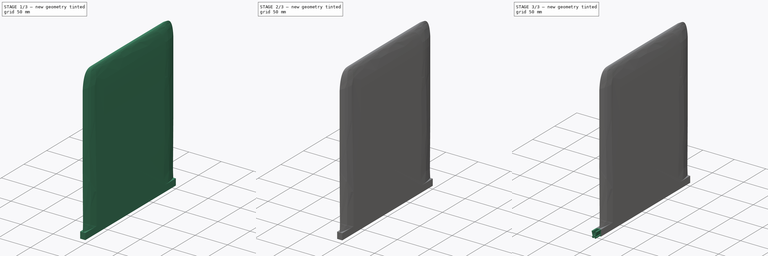
[diagram: build sequence overview — one tinted view per stage of 3, left to right]
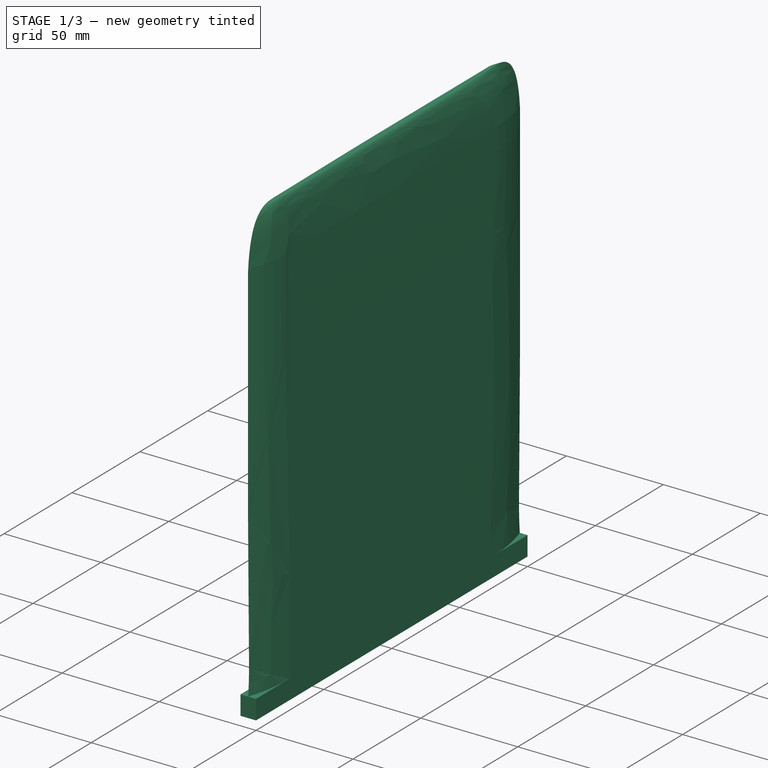
[diagram: stage 1 of 3 — iso view after this stage's code; geometry added in this stage tinted green]
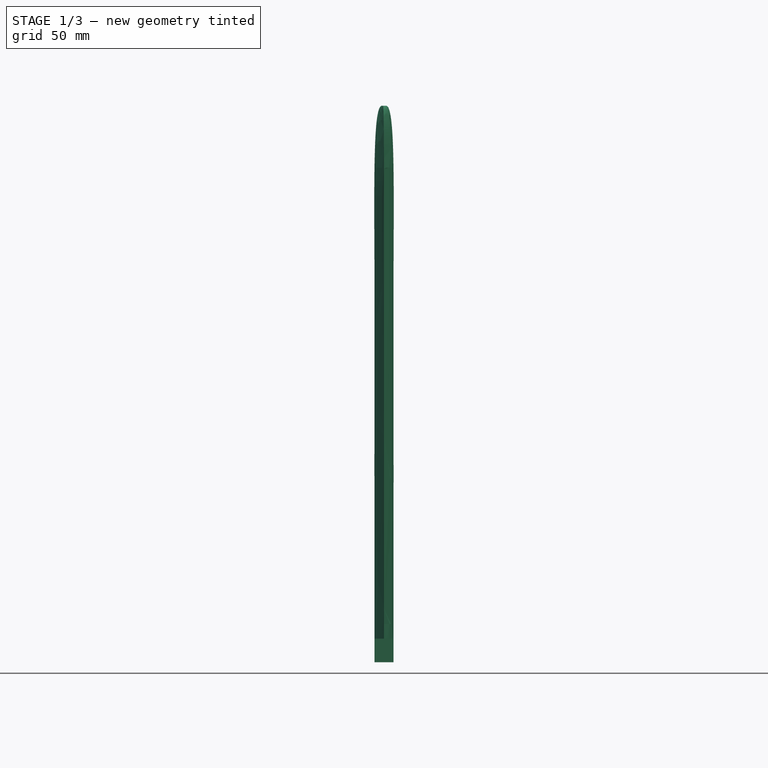
[diagram: stage 1 of 3 — front view after this stage's code; geometry added in this stage tinted green]
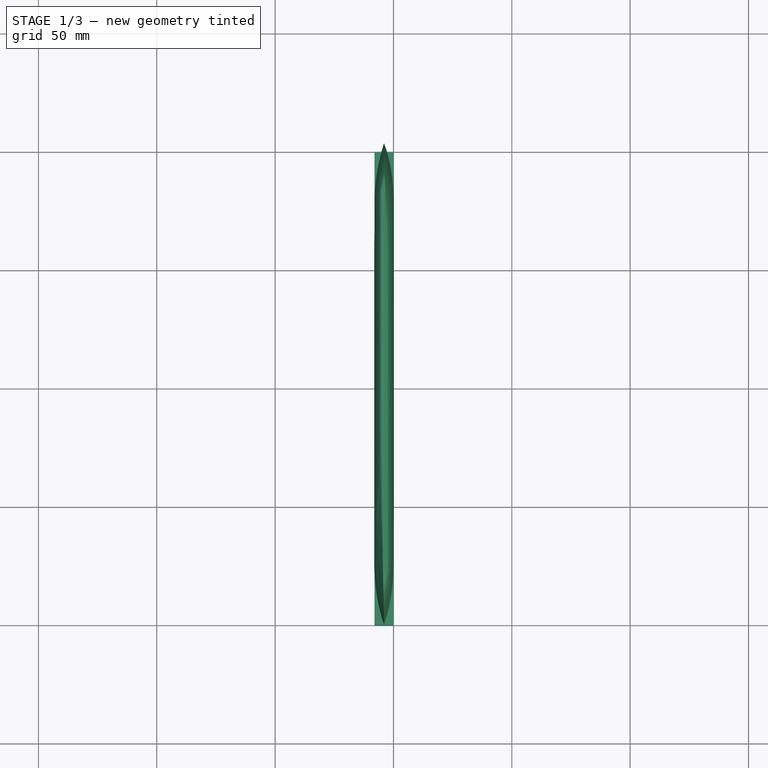
[diagram: stage 1 of 3 — top view after this stage's code; geometry added in this stage tinted green]
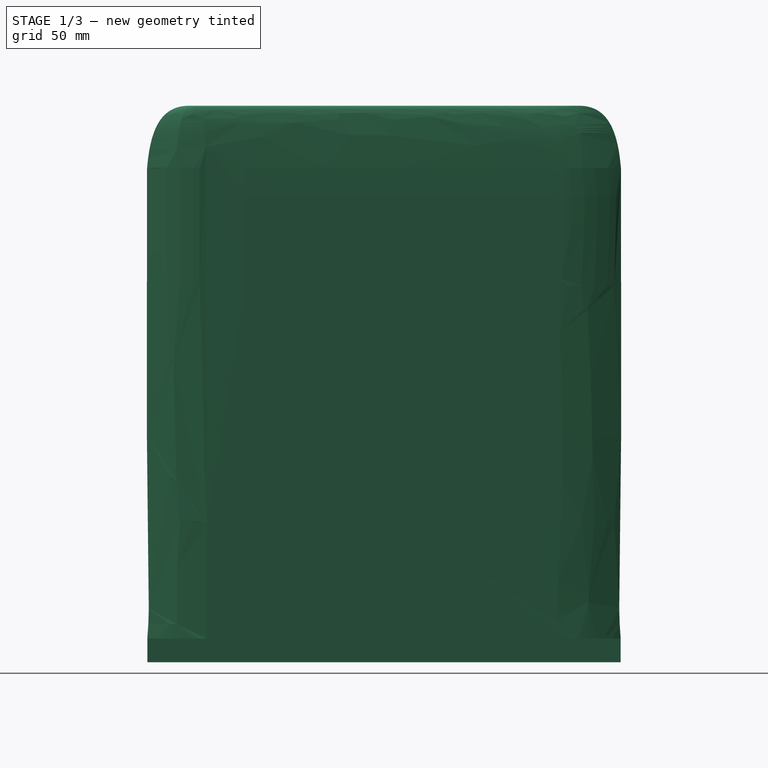
[diagram: stage 1 of 3 — right view after this stage's code; geometry added in this stage tinted green]
FCSTD DOCUMENT  (FreeCAD 1.0R39285 (Git))
Label: Fin
License: All rights reserved
LicenseURL: https://en.wikipedia.org/wiki/All_rights_reserved
objects: Sketcher::SketchObject×9, PartDesign::Pad×3, PartDesign::AdditiveLoft×1, PartDesign::Pocket×1, PartDesign::Body×1
note: 34 computed .brp shape members not serialized (recipe doc carries the construction recipe); baked Part::Feature solids carry a one-line shape summary decoded from their .brp

FEATURE [Sketcher::SketchObject] Sketch
  ArcFitTolerance = 1e-06
  AttachmentSupport = -> [XY_Plane]
  FullyConstrained = true
  MakeInternals = false
  MapMode = 5
  sketch-geometry (4):
    g0: LineSegment StartX=0 StartY=0 StartZ=0 EndX=-8 EndY=0 EndZ=0
    g1: LineSegment StartX=-8 StartY=0 StartZ=0 EndX=-8 EndY=-200 EndZ=0
    g2: LineSegment StartX=-8 StartY=-200 StartZ=0 EndX=0 EndY=-200 EndZ=0
    g3: LineSegment StartX=0 StartY=-200 StartZ=0 EndX=0 EndY=0 EndZ=0
  constraints (11):
    c: Coincident(g0,g1)
    c: Coincident(g1,g2)
    c: Coincident(g2,g3)
    c: Coincident(g3,g0)
    c: Horizontal(g0)
    c: Horizontal(g2)
    c: Vertical(g1)
    c: Vertical(g3)
    c: Distance(g1,g3) = 8
    c: Distance(g0,g2) = 200
    c: Coincident(g0,g-1)
FEATURE [PartDesign::Pad] Pad
  Direction = (0,0,1)
  Length = 10
  Length2 = 10
  Profile = -> Sketch
  ReferenceAxis = -> Sketch [N_Axis]
  Refine = true
  Suppressed = false
  Type = 0
FEATURE [Sketcher::SketchObject] Sketch001
  ArcFitTolerance = 1e-06
  AttachmentSupport = -> [Pad]
  ExternalGeometry = -> [Pad]
  FullyConstrained = true
  MakeInternals = false
  MapMode = 5
  Placement = pos=(0,0,10) rot=(0,0,1;0rad)
  sketch-geometry (11):
    g0: ArcOfCircle CenterX=72.125 CenterY=-25 CenterZ=0 NormalX=0 NormalY=0 NormalZ=1 AngleXU=0 Radius=80.125 StartAngle=2.82428 EndAngle=3.14159
    g1: LineSegment [constr] StartX=-8 StartY=-25 StartZ=0 EndX=72.125 EndY=-25 EndZ=0
    g2: ArcOfCircle CenterX=72.125 CenterY=-175 CenterZ=0 NormalX=0 NormalY=0 NormalZ=1 AngleXU=0 Radius=80.125 StartAngle=3.14159 EndAngle=3.4589
    g3: LineSegment [constr] StartX=72.125 StartY=-175 StartZ=0 EndX=-8 EndY=-175 EndZ=0
    g4: LineSegment [constr] StartX=-4 StartY=0 StartZ=0 EndX=-4 EndY=-200 EndZ=0
    g5: LineSegment StartX=-8 StartY=-25 StartZ=0 EndX=-8 EndY=-175 EndZ=0
    g6: ArcOfCircle CenterX=-80.125 CenterY=-25 CenterZ=0 NormalX=0 NormalY=0 NormalZ=1 AngleXU=0 Radius=80.125 StartAngle=0 EndAngle=0.317311
    g7: ArcOfCircle CenterX=-80.125 CenterY=-175 CenterZ=0 NormalX=0 NormalY=0 NormalZ=1 AngleXU=0 Radius=80.125 StartAngle=5.96587 EndAngle=6.28319
    g8: LineSegment StartX=0 StartY=-25 StartZ=0 EndX=0 EndY=-175 EndZ=0
    g9: LineSegment [constr] StartX=-80.125 StartY=-25 StartZ=0 EndX=-8 EndY=-25 EndZ=0
    g10: LineSegment [constr] StartX=-80.125 StartY=-175 StartZ=0 EndX=-8 EndY=-175 EndZ=0
  constraints (28):
    c: Symmetric(g-4,g-4,g0)
    c: Coincident(g1,g0)
    c: Coincident(g1,g0)
    c: Horizontal(g1)
    c: Vertical(g-4,g0)
    c: Coincident(g3,g2)
    c: Coincident(g3,g2)
    c: Horizontal(g3)
    c: Symmetric(g-3,g-3,g2)
    c: Distance(g3,g-3) = 25
    c: Distance(g-4,g1) = 25
    c: Coincident(g4,g0)
    c: Coincident(g4,g2)
    c: Tangent(g5,g0) = -1.5708
    c: Coincident(g5,g2)
    c: Tangent(g8,g6) = 1.5708
    c: Coincident(g8,g7)
    c: Coincident(g6,g0)
    c: PointOnObject(g6,g1)
    c: PointOnObject(g6,g-2)
    c: Coincident(g9,g6)
    c: Coincident(g9,g0)
    c: Horizontal(g9)
    c: PointOnObject(g7,g3)
    c: Coincident(g7,g2)
    c: Coincident(g10,g7)
    c: Coincident(g10,g2)
    c: Horizontal(g10)
FEATURE [Sketcher::SketchObject] Sketch002
  ArcFitTolerance = 1e-06
  AttachmentOffset = pos=(0,0,50) rot=(0,0,1;0rad)
  AttachmentSupport = -> [Pad]
  ExternalGeometry = -> [Pad]
  FullyConstrained = true
  MakeInternals = false
  MapMode = 5
  Placement = pos=(0,0,60) rot=(0,0,1;0rad)
  sketch-geometry (11):
    g0: ArcOfCircle CenterX=72.125 CenterY=-25 CenterZ=0 NormalX=0 NormalY=0 NormalZ=1 AngleXU=0 Radius=80.125 StartAngle=2.82428 EndAngle=3.14159
    g1: LineSegment [constr] StartX=-8 StartY=-25 StartZ=0 EndX=72.125 EndY=-25 EndZ=0
    g2: ArcOfCircle CenterX=72.125 CenterY=-175 CenterZ=0 NormalX=0 NormalY=0 NormalZ=1 AngleXU=0 Radius=80.125 StartAngle=3.14159 EndAngle=3.4589
    g3: LineSegment [constr] StartX=72.125 StartY=-175 StartZ=0 EndX=-8 EndY=-175 EndZ=0
    g4: LineSegment [constr] StartX=-4 StartY=-3.6e-15 StartZ=0 EndX=-4 EndY=-200 EndZ=0
    g5: LineSegment StartX=-8 StartY=-25 StartZ=0 EndX=-8 EndY=-175 EndZ=0
    g6: ArcOfCircle CenterX=-80.125 CenterY=-25 CenterZ=0 NormalX=0 NormalY=0 NormalZ=1 AngleXU=0 Radius=80.125 StartAngle=0 EndAngle=0.317311
    g7: ArcOfCircle CenterX=-80.125 CenterY=-175 CenterZ=0 NormalX=0 NormalY=0 NormalZ=1 AngleXU=0 Radius=80.125 StartAngle=5.96587 EndAngle=6.28319
    g8: LineSegment StartX=0 StartY=-25 StartZ=0 EndX=0 EndY=-175 EndZ=0
    g9: LineSegment [constr] StartX=-80.125 StartY=-25 StartZ=0 EndX=-8 EndY=-25 EndZ=0
    g10: LineSegment [constr] StartX=-80.125 StartY=-175 StartZ=0 EndX=-8 EndY=-175 EndZ=0
  constraints (28):
    c: Symmetric(g-4,g-4,g0)
    c: Coincident(g1,g0)
    c: Coincident(g1,g0)
    c: Horizontal(g1)
    c: Vertical(g-4,g0)
    c: Coincident(g3,g2)
    c: Coincident(g3,g2)
    c: Horizontal(g3)
    c: Symmetric(g-3,g-3,g2)
    c: Distance(g3,g-3) = 25
    c: Distance(g-4,g1) = 25
    c: Coincident(g4,g0)
    c: Coincident(g4,g2)
    c: Tangent(g5,g0) = -1.5708
    c: Coincident(g5,g2)
    c: Tangent(g8,g6) = 1.5708
    c: Coincident(g8,g7)
    c: Coincident(g6,g0)
    c: PointOnObject(g6,g1)
    c: PointOnObject(g6,g-2)
    c: Coincident(g9,g6)
    c: Coincident(g9,g0)
    c: Horizontal(g9)
    c: PointOnObject(g7,g3)
    c: Coincident(g7,g2)
    c: Coincident(g10,g7)
    c: Coincident(g10,g2)
    c: Horizontal(g10)
FEATURE [Sketcher::SketchObject] Sketch003
  ArcFitTolerance = 1e-06
  AttachmentOffset = pos=(0,0,100) rot=(0,0,1;0rad)
  AttachmentSupport = -> [Pad]
  ExternalGeometry = -> [Pad]
  FullyConstrained = true
  MakeInternals = false
  MapMode = 5
  Placement = pos=(0,0,110) rot=(0,0,1;0rad)
  sketch-geometry (11):
    g0: ArcOfCircle CenterX=72.125 CenterY=-25 CenterZ=0 NormalX=0 NormalY=0 NormalZ=1 AngleXU=0 Radius=80.125 StartAngle=2.82428 EndAngle=3.14159
    g1: LineSegment [constr] StartX=-8 StartY=-25 StartZ=0 EndX=72.125 EndY=-25 EndZ=0
    g2: ArcOfCircle CenterX=72.125 CenterY=-175 CenterZ=0 NormalX=0 NormalY=0 NormalZ=1 AngleXU=0 Radius=80.125 StartAngle=3.14159 EndAngle=3.4589
    g3: LineSegment [constr] StartX=72.125 StartY=-175 StartZ=0 EndX=-8 EndY=-175 EndZ=0
    g4: LineSegment [constr] StartX=-4 StartY=1.78e-14 StartZ=0 EndX=-4 EndY=-200 EndZ=0
    g5: LineSegment StartX=-8 StartY=-25 StartZ=0 EndX=-8 EndY=-175 EndZ=0
    g6: ArcOfCircle CenterX=-80.125 CenterY=-25 CenterZ=0 NormalX=0 NormalY=0 NormalZ=1 AngleXU=0 Radius=80.125 StartAngle=0 EndAngle=0.317311
    g7: ArcOfCircle CenterX=-80.125 CenterY=-175 CenterZ=0 NormalX=0 NormalY=0 NormalZ=1 AngleXU=0 Radius=80.125 StartAngle=5.96587 EndAngle=6.28319
    g8: LineSegment StartX=0 StartY=-25 StartZ=0 EndX=0 EndY=-175 EndZ=0
    g9: LineSegment [constr] StartX=-80.125 StartY=-25 StartZ=0 EndX=-8 EndY=-25 EndZ=0
    g10: LineSegment [constr] StartX=-80.125 StartY=-175 StartZ=0 EndX=-8 EndY=-175 EndZ=0
  constraints (28):
    c: Symmetric(g-4,g-4,g0)
    c: Coincident(g1,g0)
    c: Coincident(g1,g0)
    c: Horizontal(g1)
    c: Vertical(g-4,g0)
    c: Coincident(g3,g2)
    c: Coincident(g3,g2)
    c: Horizontal(g3)
    c: Symmetric(g-3,g-3,g2)
    c: Distance(g3,g-3) = 25
    c: Distance(g-4,g1) = 25
    c: Coincident(g4,g0)
    c: Coincident(g4,g2)
    c: Tangent(g5,g0) = -1.5708
    c: Coincident(g5,g2)
    c: Tangent(g8,g6) = 1.5708
    c: Coincident(g8,g7)
    c: Coincident(g6,g0)
    c: PointOnObject(g6,g1)
    c: PointOnObject(g6,g-2)
    c: Coincident(g9,g6)
    c: Coincident(g9,g0)
    c: Horizontal(g9)
    c: PointOnObject(g7,g3)
    c: Coincident(g7,g2)
    c: Coincident(g10,g7)
    c: Coincident(g10,g2)
    c: Horizontal(g10)
FEATURE [Sketcher::SketchObject] Sketch004
  ArcFitTolerance = 1e-06
  AttachmentOffset = pos=(0,0,150) rot=(0,0,1;0rad)
  AttachmentSupport = -> [Pad]
  ExternalGeometry = -> [Pad]
  FullyConstrained = true
  MakeInternals = false
  MapMode = 5
  Placement = pos=(0,0,160) rot=(0,0,1;0rad)
  sketch-geometry (11):
    g0: ArcOfCircle CenterX=72.125 CenterY=-25 CenterZ=0 NormalX=0 NormalY=0 NormalZ=1 AngleXU=0 Radius=80.125 StartAngle=2.82428 EndAngle=3.14159
    g1: LineSegment [constr] StartX=-8 StartY=-25 StartZ=0 EndX=72.125 EndY=-25 EndZ=0
    g2: ArcOfCircle CenterX=72.125 CenterY=-175 CenterZ=0 NormalX=0 NormalY=0 NormalZ=1 AngleXU=0 Radius=80.125 StartAngle=3.14159 EndAngle=3.4589
    g3: LineSegment [constr] StartX=72.125 StartY=-175 StartZ=0 EndX=-8 EndY=-175 EndZ=0
    g4: LineSegment [constr] StartX=-4 StartY=7.1e-15 StartZ=0 EndX=-4 EndY=-200 EndZ=0
    g5: LineSegment StartX=-8 StartY=-25 StartZ=0 EndX=-8 EndY=-175 EndZ=0
    g6: ArcOfCircle CenterX=-80.125 CenterY=-25 CenterZ=0 NormalX=0 NormalY=0 NormalZ=1 AngleXU=0 Radius=80.125 StartAngle=0 EndAngle=0.317311
    g7: ArcOfCircle CenterX=-80.125 CenterY=-175 CenterZ=0 NormalX=0 NormalY=0 NormalZ=1 AngleXU=0 Radius=80.125 StartAngle=5.96587 EndAngle=6.28319
    g8: LineSegment StartX=0 StartY=-25 StartZ=0 EndX=0 EndY=-175 EndZ=0
    g9: LineSegment [constr] StartX=-80.125 StartY=-25 StartZ=0 EndX=-8 EndY=-25 EndZ=0
    g10: LineSegment [constr] StartX=-80.125 StartY=-175 StartZ=0 EndX=-8 EndY=-175 EndZ=0
  constraints (28):
    c: Symmetric(g-4,g-4,g0)
    c: Coincident(g1,g0)
    c: Coincident(g1,g0)
    c: Horizontal(g1)
    c: Vertical(g-4,g0)
    c: Coincident(g3,g2)
    c: Coincident(g3,g2)
    c: Horizontal(g3)
    c: Symmetric(g-3,g-3,g2)
    c: Distance(g3,g-3) = 25
    c: Distance(g-4,g1) = 25
    c: Coincident(g4,g0)
    c: Coincident(g4,g2)
    c: Tangent(g5,g0) = -1.5708
    c: Coincident(g5,g2)
    c: Tangent(g8,g6) = 1.5708
    c: Coincident(g8,g7)
    c: Coincident(g6,g0)
    c: PointOnObject(g6,g1)
    c: PointOnObject(g6,g-2)
    c: Coincident(g9,g6)
    c: Coincident(g9,g0)
    c: Horizontal(g9)
    c: PointOnObject(g7,g3)
    c: Coincident(g7,g2)
    c: Coincident(g10,g7)
    c: Coincident(g10,g2)
    c: Horizontal(g10)
FEATURE [Sketcher::SketchObject] Sketch005
  ArcFitTolerance = 1e-06
  AttachmentOffset = pos=(0,0,200) rot=(0,0,1;0rad)
  AttachmentSupport = -> [Pad]
  ExternalGeometry = -> [Pad]
  FullyConstrained = true
  MakeInternals = false
  MapMode = 5
  Placement = pos=(0,0,210) rot=(0,0,1;0rad)
  sketch-geometry (11):
    g0: ArcOfCircle CenterX=72.125 CenterY=-25 CenterZ=0 NormalX=0 NormalY=0 NormalZ=1 AngleXU=0 Radius=80.125 StartAngle=2.82428 EndAngle=3.14159
    g1: LineSegment [constr] StartX=-8 StartY=-25 StartZ=0 EndX=72.125 EndY=-25 EndZ=0
    g2: ArcOfCircle CenterX=72.125 CenterY=-175 CenterZ=0 NormalX=0 NormalY=0 NormalZ=1 AngleXU=0 Radius=80.125 StartAngle=3.14159 EndAngle=3.4589
    g3: LineSegment [constr] StartX=72.125 StartY=-175 StartZ=0 EndX=-8 EndY=-175 EndZ=0
    g4: LineSegment [constr] StartX=-4 StartY=7.1e-15 StartZ=0 EndX=-4 EndY=-200 EndZ=0
    g5: LineSegment StartX=-8 StartY=-25 StartZ=0 EndX=-8 EndY=-175 EndZ=0
    g6: ArcOfCircle CenterX=-80.125 CenterY=-25 CenterZ=0 NormalX=0 NormalY=0 NormalZ=1 AngleXU=0 Radius=80.125 StartAngle=0 EndAngle=0.317311
    g7: ArcOfCircle CenterX=-80.125 CenterY=-175 CenterZ=0 NormalX=0 NormalY=0 NormalZ=1 AngleXU=0 Radius=80.125 StartAngle=5.96587 EndAngle=6.28319
    g8: LineSegment StartX=0 StartY=-25 StartZ=0 EndX=0 EndY=-175 EndZ=0
    g9: LineSegment [constr] StartX=-80.125 StartY=-25 StartZ=0 EndX=-8 EndY=-25 EndZ=0
    g10: LineSegment [constr] StartX=-80.125 StartY=-175 StartZ=0 EndX=-8 EndY=-175 EndZ=0
  constraints (28):
    c: Symmetric(g-4,g-4,g0)
    c: Coincident(g1,g0)
    c: Coincident(g1,g0)
    c: Horizontal(g1)
    c: Vertical(g-4,g0)
    c: Coincident(g3,g2)
    c: Coincident(g3,g2)
    c: Horizontal(g3)
    c: Symmetric(g-3,g-3,g2)
    c: Distance(g3,g-3) = 25
    c: Distance(g-4,g1) = 25
    c: Coincident(g4,g0)
    c: Coincident(g4,g2)
    c: Tangent(g5,g0) = -1.5708
    c: Coincident(g5,g2)
    c: Tangent(g8,g6) = 1.5708
    c: Coincident(g8,g7)
    c: Coincident(g6,g0)
    c: PointOnObject(g6,g1)
    c: PointOnObject(g6,g-2)
    c: Coincident(g9,g6)
    c: Coincident(g9,g0)
    c: Horizontal(g9)
    c: PointOnObject(g7,g3)
    c: Coincident(g7,g2)
    c: Coincident(g10,g7)
    c: Coincident(g10,g2)
    c: Horizontal(g10)
FEATURE [Sketcher::SketchObject] Sketch006
  ArcFitTolerance = 1e-06
  AttachmentOffset = pos=(0,0,225) rot=(0,0,1;0rad)
  AttachmentSupport = -> [Pad]
  ExternalGeometry = -> [Pad]
  FullyConstrained = false
  MakeInternals = false
  MapMode = 5
  Placement = pos=(0,0,235) rot=(0,0,1;0rad)
  sketch-geometry (9):
    g0: LineSegment [constr] StartX=-4 StartY=-200 StartZ=0 EndX=-4 EndY=-180 EndZ=0
    g1: LineSegment [constr] StartX=-4 StartY=0 StartZ=0 EndX=-4 EndY=-20 EndZ=0
    g2: LineSegment [constr] StartX=-4 StartY=-20 StartZ=0 EndX=-4 EndY=-180 EndZ=0
    g3: ArcOfCircle CenterX=-4 CenterY=-20 CenterZ=0 NormalX=0 NormalY=0 NormalZ=-1 AngleXU=-1.5708 Radius=0.5 StartAngle=1.5708 EndAngle=4.71239
    g4: LineSegment StartX=-3.5 StartY=-20 StartZ=0 EndX=-3.5 EndY=-73.3333 EndZ=0
    g5: LineSegment StartX=-3.5 StartY=-73.3333 StartZ=0 EndX=-3.5 EndY=-180 EndZ=0
    g6: ArcOfCircle CenterX=-4 CenterY=-180 CenterZ=0 NormalX=0 NormalY=0 NormalZ=-1 AngleXU=1.5708 Radius=0.5 StartAngle=1.5708 EndAngle=4.71239
    g7: LineSegment StartX=-4.5 StartY=-73.3333 StartZ=0 EndX=-4.5 EndY=-180 EndZ=0
    g8: LineSegment StartX=-4.5 StartY=-20 StartZ=0 EndX=-4.5 EndY=-73.3333 EndZ=0
  constraints (14):
    c: Distance(g0) = 20
    c: Symmetric(g-4,g-4,g0)
    c: Vertical(g0)
    c: Distance(g1) = 20
    c: Symmetric(g-3,g-3,g1)
    c: Vertical(g1)
    c: Coincident(g2,g1)
    c: Coincident(g2,g0)
    c: Tangent(g3,g4) = 1.5708
    c: Tangent(g3,g8) = -1.5708
    c: Coincident(g4,g5)
    c: Tangent(g5,g6) = 1.5708
    c: Tangent(g6,g7) = -1.5708
    c: Coincident(g7,g8)
FEATURE [PartDesign::AdditiveLoft] AdditiveLoft
  BaseFeature = -> Pad
  Closed = false
  Profile = -> Sketch001
  Refine = true
  Ruled = false
  Sections = -> [Sketch002,Sketch003,Sketch004,Sketch005,Sketch006]
  Suppressed = false
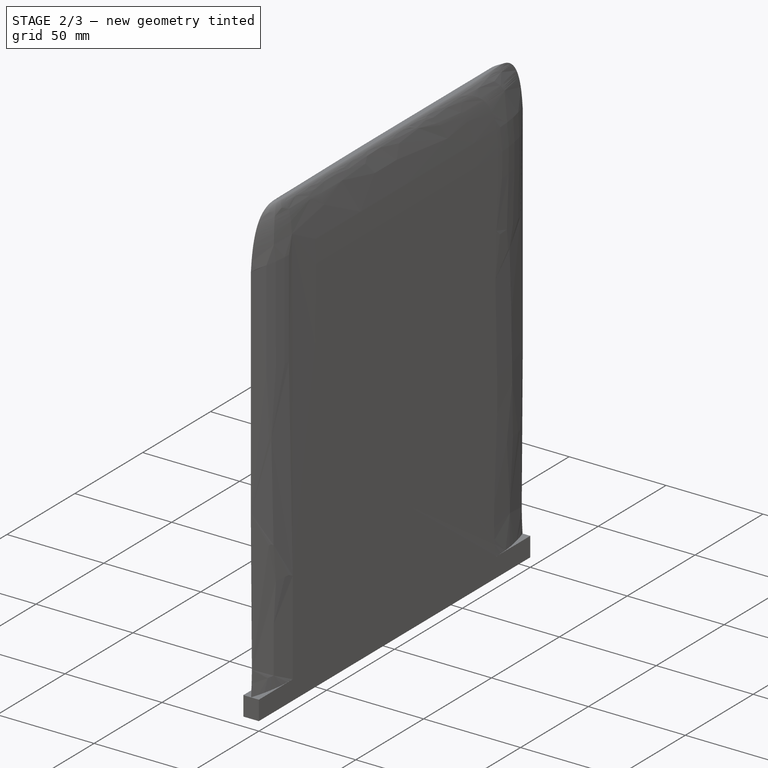
[diagram: stage 2 of 3 — iso view after this stage's code; geometry added in this stage tinted green]
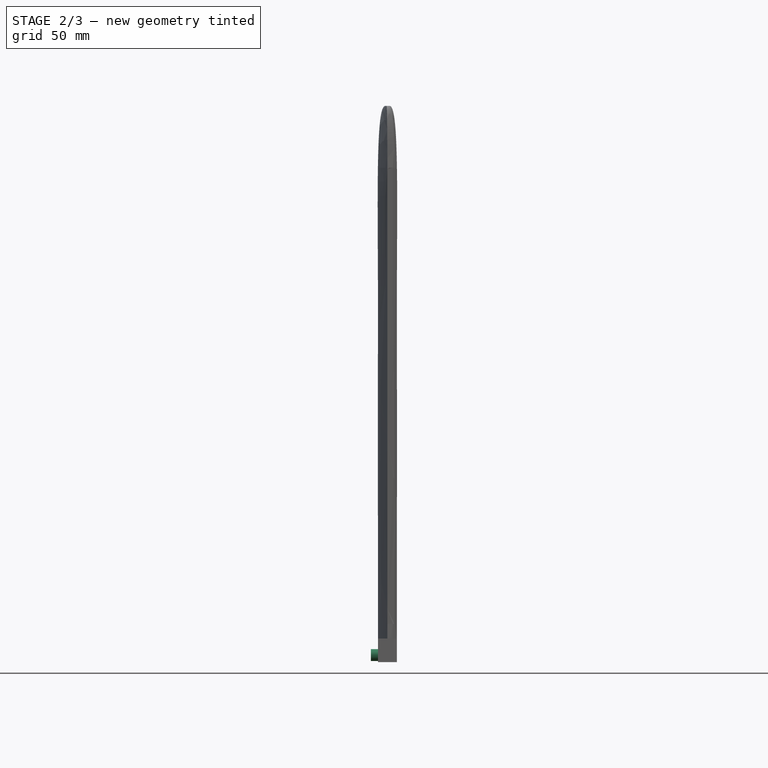
[diagram: stage 2 of 3 — front view after this stage's code; geometry added in this stage tinted green]
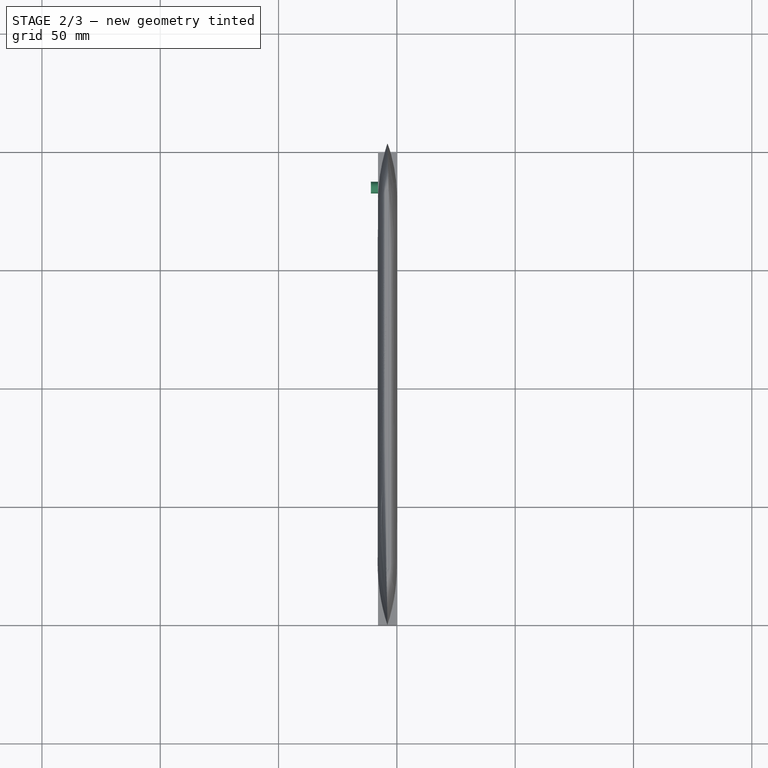
[diagram: stage 2 of 3 — top view after this stage's code; geometry added in this stage tinted green]
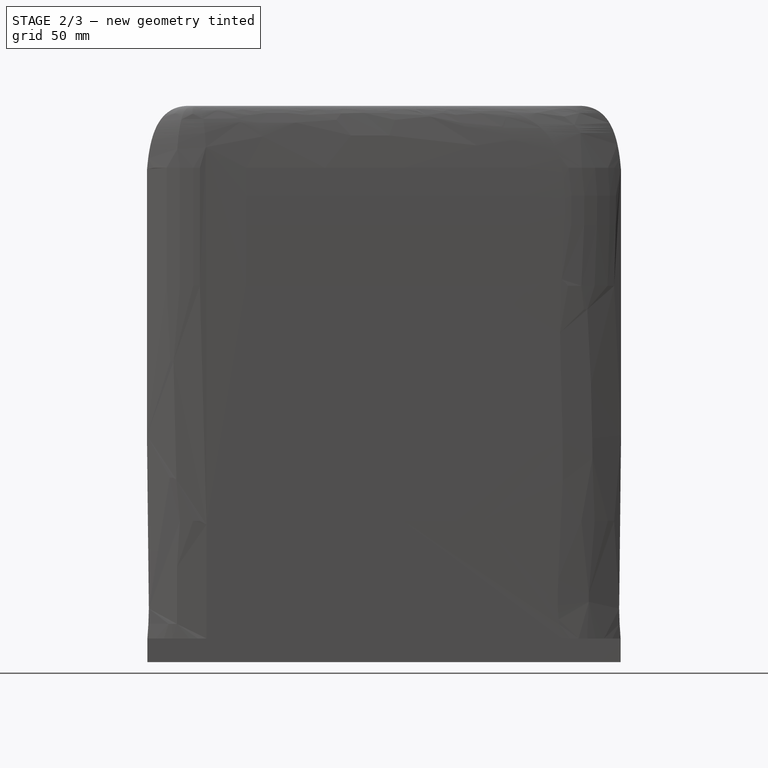
[diagram: stage 2 of 3 — right view after this stage's code; geometry added in this stage tinted green]
FEATURE [Sketcher::SketchObject] Sketch007
  ArcFitTolerance = 1e-06
  AttachmentSupport = -> [AdditiveLoft]
  ExternalGeometry = -> [AdditiveLoft]
  FullyConstrained = true
  MakeInternals = false
  MapMode = 5
  Placement = pos=(-8,0,0) rot=(0.57735,-0.57735,-0.57735;2.0944rad)
  sketch-geometry (3):
    g0: Circle CenterX=15 CenterY=3 CenterZ=0 NormalX=0 NormalY=0 NormalZ=1 AngleXU=0 Radius=2.5
    g1: LineSegment [constr] StartX=15 StartY=0 StartZ=0 EndX=15 EndY=3 EndZ=0
    g2: LineSegment [constr] StartX=15 StartY=3 StartZ=0 EndX=0 EndY=3 EndZ=0
  constraints (9):
    c: Diameter(g0) = 5
    c: PointOnObject(g1,g-4)
    c: Coincident(g1,g0)
    c: Coincident(g2,g0)
    c: PointOnObject(g2,g-3)
    c: Horizontal(g2)
    c: Vertical(g1)
    c: DistanceX(g2,g2) = 15
    c: DistanceY(g1,g1) = 3
FEATURE [PartDesign::Pad] Pad001
  BaseFeature = -> AdditiveLoft
  Direction = (-1,0,0)
  Length = 3
  Length2 = 10
  Profile = -> Sketch007
  ReferenceAxis = -> Sketch007 [N_Axis]
  Refine = true
  Suppressed = false
  Type = 0
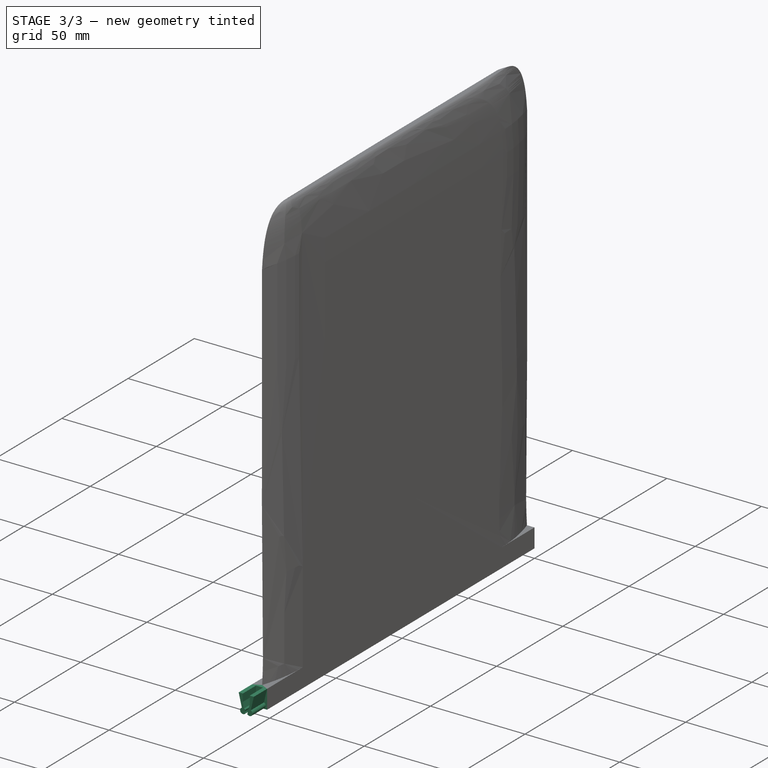
[diagram: stage 3 of 3 — iso view after this stage's code; geometry added in this stage tinted green]
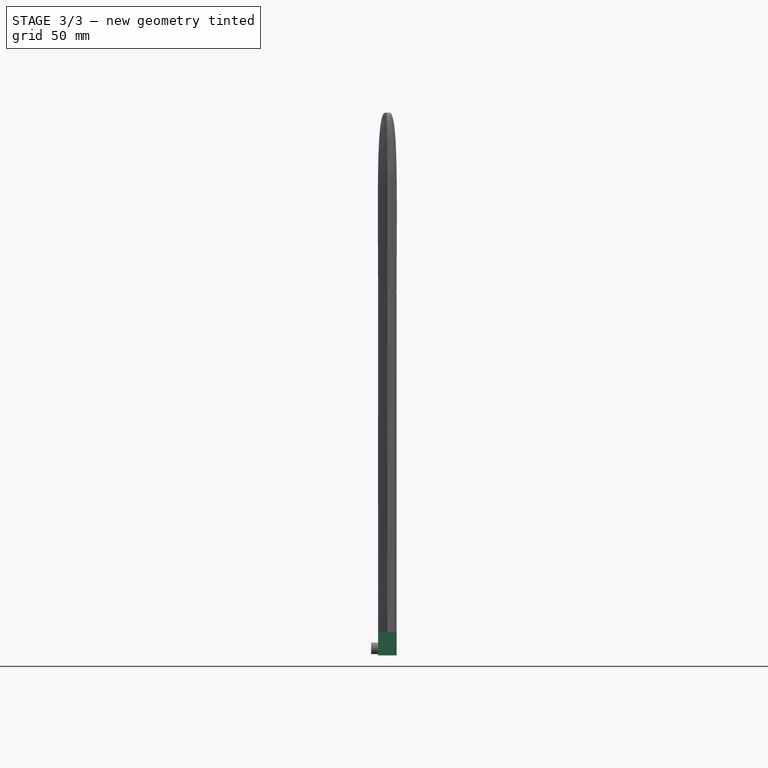
[diagram: stage 3 of 3 — front view after this stage's code; geometry added in this stage tinted green]
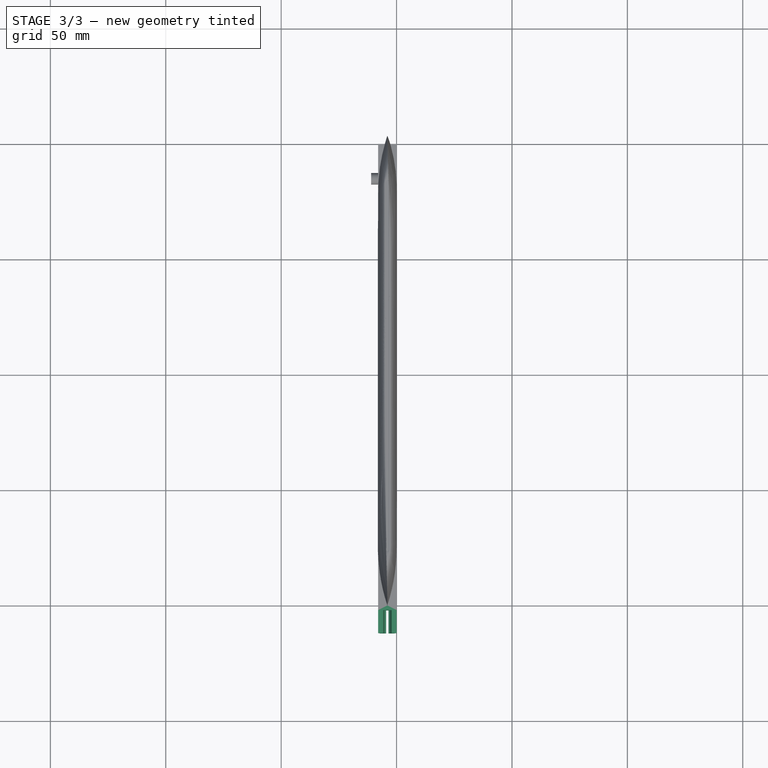
[diagram: stage 3 of 3 — top view after this stage's code; geometry added in this stage tinted green]
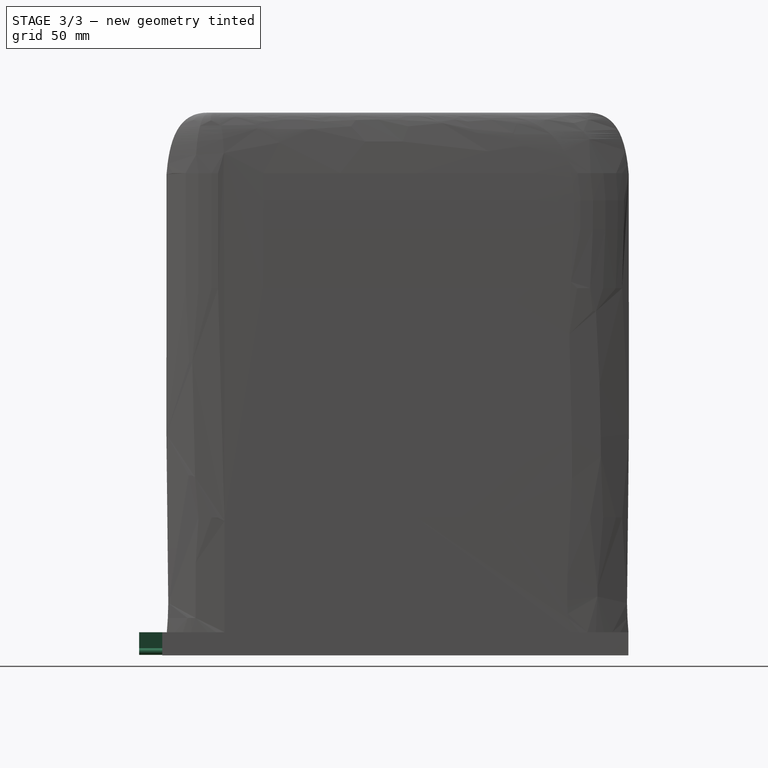
[diagram: stage 3 of 3 — right view after this stage's code; geometry added in this stage tinted green]
FEATURE [PartDesign::Pad] Pad002
  BaseFeature = -> Pad001
  Direction = (0,-1,0)
  Length = 12
  Length2 = 10
  Profile = -> Pad001 [Face7]
  Refine = true
  Suppressed = false
  Type = 0
FEATURE [Sketcher::SketchObject] Sketch009
  ArcFitTolerance = 1e-06
  AttachmentSupport = -> [Pad002]
  FullyConstrained = true
  MakeInternals = false
  MapMode = 5
  Placement = pos=(0,-212,0) rot=(1,0,0;1.5708rad)
  sketch-geometry (24):
    g0: LineSegment [constr] StartX=-4 StartY=10 StartZ=0 EndX=-4 EndY=0 EndZ=0
    g1: ArcOfCircle CenterX=-2.25 CenterY=1.7 CenterZ=0 NormalX=0 NormalY=0 NormalZ=1 AngleXU=0 Radius=1.5 StartAngle=3.72728 EndAngle=7.44246
    g2: ArcOfCircle CenterX=-2.25 CenterY=1.7 CenterZ=0 NormalX=0 NormalY=0 NormalZ=1 AngleXU=0 Radius=1.5 StartAngle=1.98231 EndAngle=2.55591
    g3: LineSegment StartX=-1.65 StartY=3.07477 StartZ=0 EndX=0 EndY=10 EndZ=0
    g4: LineSegment [constr] StartX=-1.65 StartY=3.07477 StartZ=0 EndX=-2.85 EndY=3.07477 EndZ=0
    g5: ArcOfCircle CenterX=-4.75 CenterY=1.7 CenterZ=0 NormalX=0 NormalY=0 NormalZ=1 AngleXU=0 Radius=1.5 StartAngle=5.6975 EndAngle=6.86887
    g6: LineSegment StartX=-8 StartY=10 StartZ=0 EndX=-6.35 EndY=3.07477 EndZ=0
    g7: LineSegment StartX=-8 StartY=10 StartZ=0 EndX=-8 EndY=0 EndZ=0
    g8: LineSegment [constr] StartX=-6.35 StartY=3.07477 StartZ=0 EndX=-5.15 EndY=3.07477 EndZ=0
    g9: ArcOfCircle CenterX=-5.75 CenterY=1.7 CenterZ=0 NormalX=0 NormalY=0 NormalZ=1 AngleXU=0 Radius=1.5 StartAngle=0.585686 EndAngle=1.15928
    g10: ArcOfCircle CenterX=-5.75 CenterY=1.7 CenterZ=0 NormalX=0 NormalY=0 NormalZ=1 AngleXU=0 Radius=1.5 StartAngle=1.98231 EndAngle=5.6975
    g11: ArcOfCircle CenterX=-3.25 CenterY=1.7 CenterZ=0 NormalX=0 NormalY=0 NormalZ=1 AngleXU=0 Radius=1.5 StartAngle=2.55591 EndAngle=3.72728
    g12: LineSegment [constr] StartX=-3.5 StartY=0.870844 StartZ=0 EndX=-4 EndY=0.870844 EndZ=0
    g13: LineSegment [constr] StartX=-4.5 StartY=0.870844 StartZ=0 EndX=-4 EndY=0.870844 EndZ=0
    g14: LineSegment [constr] StartX=-4.75 StartY=1.7 StartZ=0 EndX=-3.25 EndY=1.7 EndZ=0
    g15: LineSegment [constr] StartX=-4.5 StartY=2.52916 StartZ=0 EndX=-4.5 EndY=0.870844 EndZ=0
    g16: LineSegment [constr] StartX=-3.5 StartY=2.52916 StartZ=0 EndX=-3.5 EndY=0.870844 EndZ=0
    g17: LineSegment StartX=-8 StartY=0 StartZ=0 EndX=0 EndY=0 EndZ=0
    g18: LineSegment StartX=0 StartY=10 StartZ=0 EndX=0 EndY=0 EndZ=0
    g19: LineSegment StartX=-5.15 StartY=3.07477 StartZ=0 EndX=-5.84696 EndY=6 EndZ=0
    g20: LineSegment StartX=-2.85 StartY=3.07477 StartZ=0 EndX=-2.15304 EndY=6 EndZ=0
    g21: LineSegment StartX=-5.84696 StartY=6 StartZ=0 EndX=-5.84696 EndY=10 EndZ=0
    g22: LineSegment StartX=-2.15304 StartY=6 StartZ=0 EndX=-2.15304 EndY=10 EndZ=0
    g23: LineSegment StartX=-2.15304 StartY=10 StartZ=0 EndX=-5.84696 EndY=10 EndZ=0
  constraints (64):
    c: Symmetric(g-3,g-3,g0)
    c: Symmetric(g-4,g-4,g0)
    c: Coincident(g2,g1)
    c: Coincident(g3,g1)
    c: Coincident(g3,g-6)
    c: Coincident(g4,g1)
    c: Horizontal(g4)
    c: Radius(g1) = 1.5
    c: Equal(g2,g1)
    c: Coincident(g5,g2)
    c: Coincident(g5,g1)
    c: Equal(g5,g1)
    c: Distance(g1,g0) = 0.5
    c: Coincident(g6,g-5)
    c: Coincident(g7,g6)
    c: Coincident(g7,g-5)
    c: Distance(g1,g-4) = 0.2
    c: Coincident(g8,g6)
    c: Coincident(g10,g9)
    c: Coincident(g10,g6)
    c: Coincident(g11,g9)
    c: Coincident(g11,g10)
    c: Horizontal(g8)
    c: Distance(g10,g-4) = 0.2
    c: Radius(g10) = 1.5
    c: Coincident(g12,g1)
    c: PointOnObject(g12,g0)
    c: Horizontal(g12)
    c: Coincident(g13,g10)
    c: Coincident(g13,g12)
    c: Horizontal(g13)
    c: Equal(g13,g12)
    c: Equal(g9,g10)
    c: Coincident(g14,g5)
    c: Coincident(g11,g14)
    c: Symmetric(g11,g5,g0)
    c: PointOnObject(g5,g11)
    c: Coincident(g15,g9)
    c: Coincident(g15,g10)
    c: Coincident(g16,g2)
    c: Coincident(g16,g1)
    c: Vertical(g16)
    c: Coincident(g17,g7)
    c: Coincident(g17,g-1)
    c: Coincident(g18,g3)
    c: Coincident(g18,g17)
    c: Coincident(g19,g9)
    c: Distance(g8,g8) = 1.2
    c: Distance(g4,g4) = 1.2
    c: Parallel(g19,g6)
    c: Coincident(g20,g2)
    c: Parallel(g20,g3)
    c: Coincident(g21,g19)
    c: PointOnObject(g21,g-3)
    c: Vertical(g21)
    c: Coincident(g22,g20)
    c: PointOnObject(g22,g-3)
    c: Vertical(g22)
    c: Coincident(g23,g22)
    c: Coincident(g23,g21)
    c: DistanceY(g21,g21) = 4
    c: Equal(g22,g21)
    c: Coincident(g4,g2)
    c: Coincident(g8,g9)
FEATURE [PartDesign::Pocket] Pocket
  BaseFeature = -> Pad002
  Direction = (0,1,-2e-16)
  Length = 10
  Length2 = 5
  Profile = -> Sketch009
  ReferenceAxis = -> Sketch009 [N_Axis]
  Refine = true
  Suppressed = false
  Type = 0
FEATURE [PartDesign::Body] Body
  AllowCompound = false
  Group = -> [Sketch,Pad,Sketch001,Sketch002,Sketch003,Sketch004,Sketch005,AdditiveLoft,Sketch006,Sketch007,Pad001,Sketch009,Pad002,Pocket]
  Origin = -> Origin
  Tip = -> Pocket
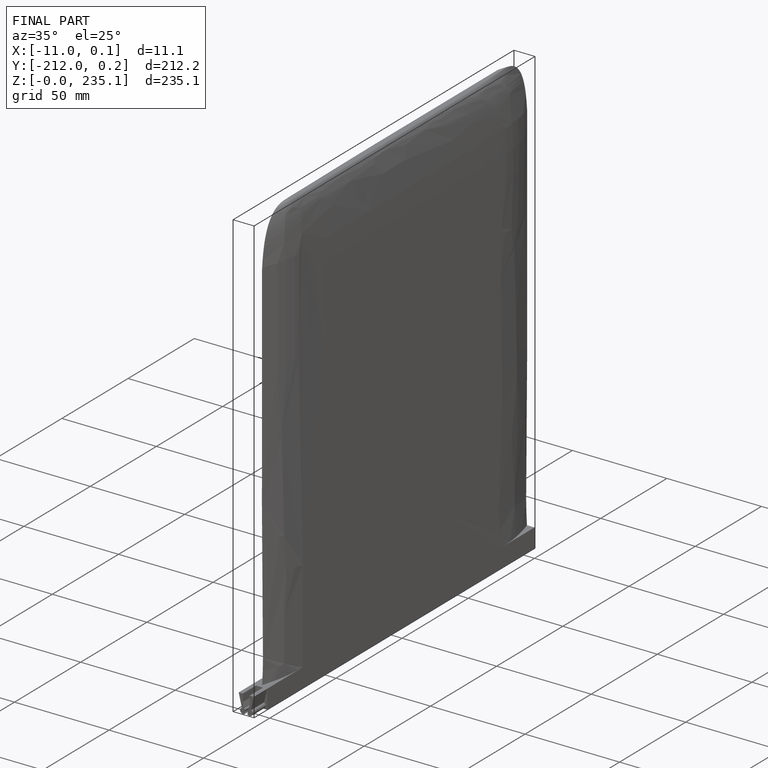
[diagram: finished part — iso view with bounding-box wireframe]
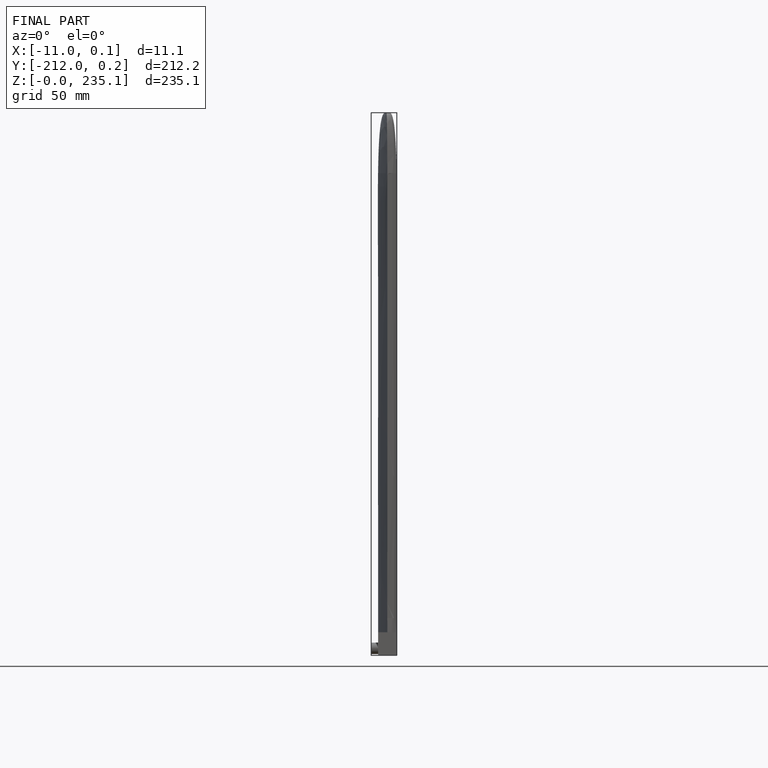
[diagram: finished part — front view with bounding-box wireframe]
